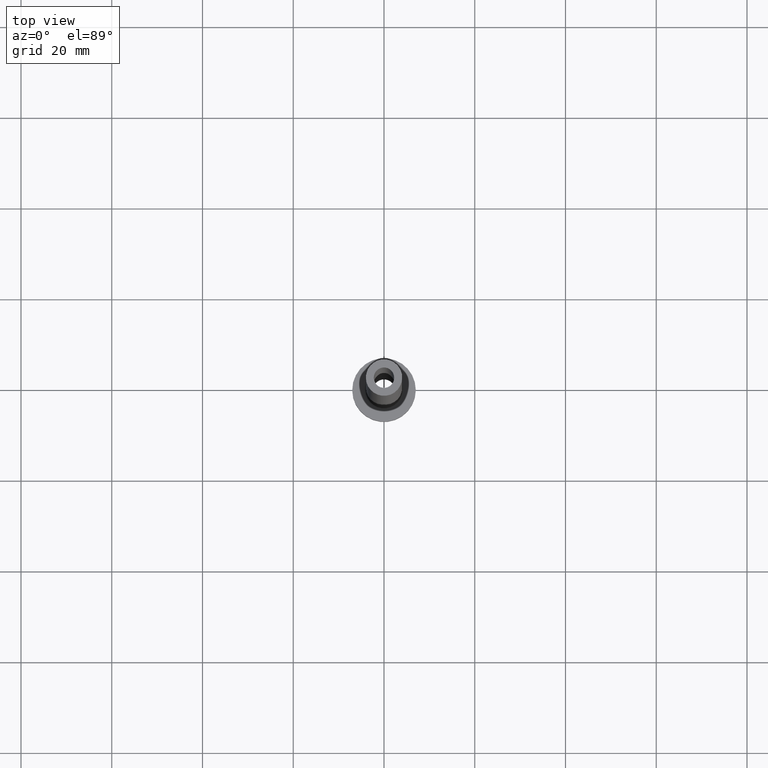
[diagram: clean part render]
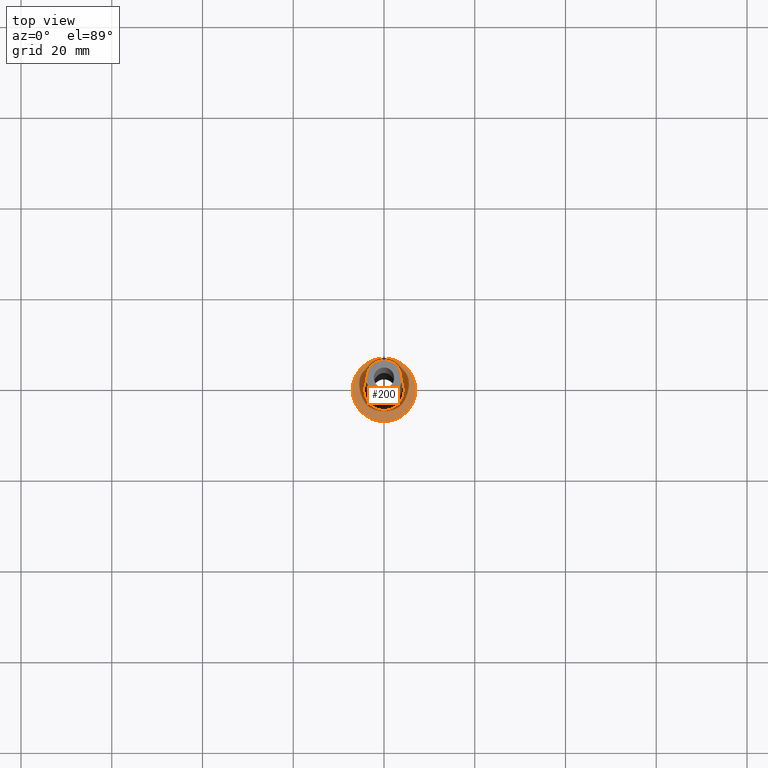
[diagram: same view with one face highlighted and labeled with its STEP entity id]
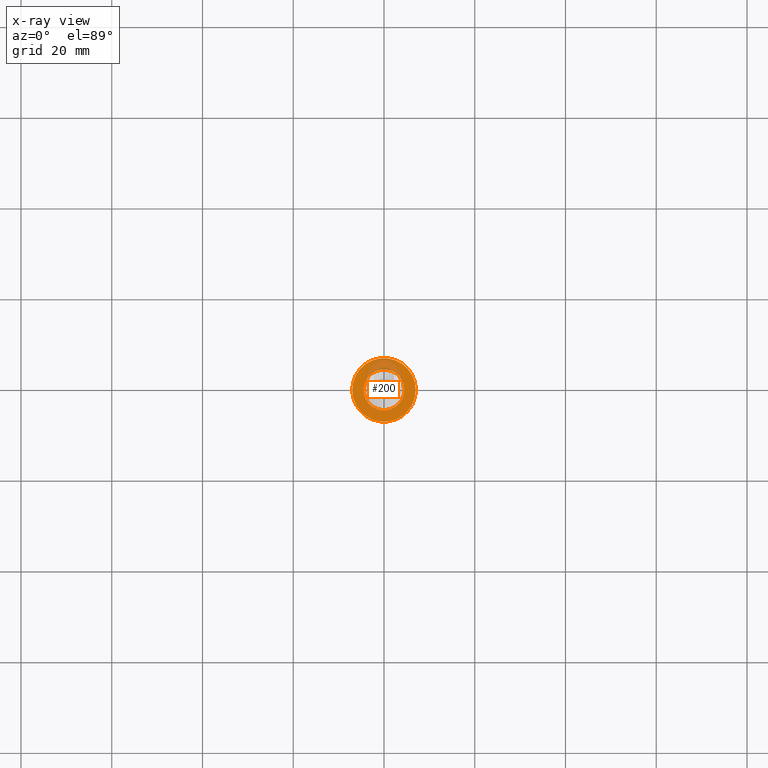
[diagram: x-ray of the same camera — body ghosted, the highlighted face saturated]
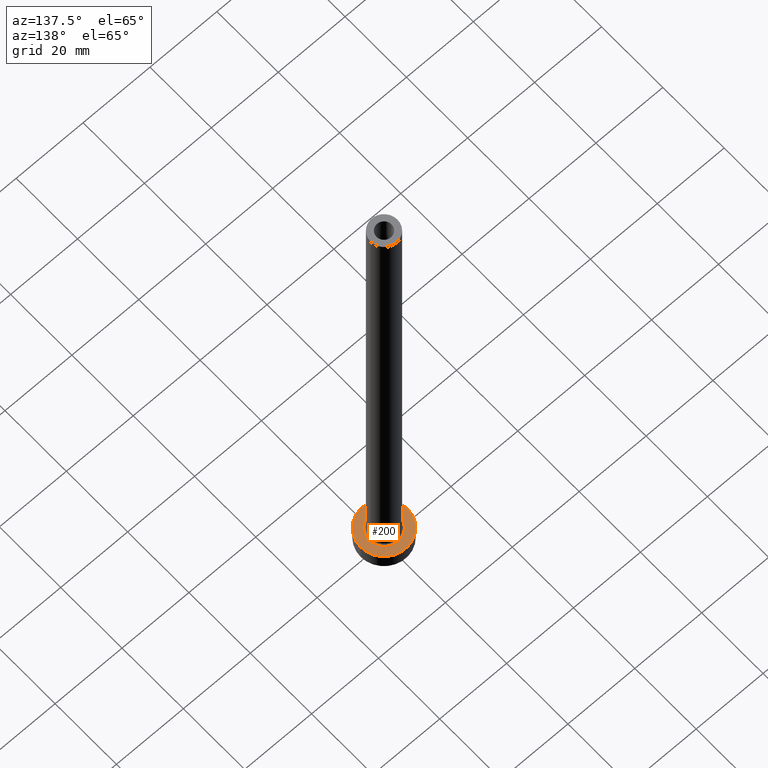
[diagram: same view with one face highlighted and labeled with its STEP entity id]
A machine part, top view. The second image highlights one B-rep face of the part: STEP entity #200.
The next image is the same camera in x-ray: the body ghosted, the highlighted face saturated — about 18% of this face is hidden behind the body in this view.
A second angle (auxiliary view) of the same face is appended — the face is thin or edge-on in the first view.
In plain terms, the highlighted planar face has unit normal (0, 0, 1).
Its self-contained STEP definition (entity closure, byte-faithful):
#3 = CARTESIAN_POINT ( 'NONE',  ( -4.500000000000000888, 5.510910596163088569E-16, 5.000000000000002665 ) ) ;
#4 = DIRECTION ( 'NONE',  ( -0.000000000000000000, -0.000000000000000000, -1.000000000000000000 ) ) ;
#20 = VERTEX_POINT ( 'NONE', #3 ) ;
#21 = PLANE ( 'NONE',  #236 ) ;
#22 = AXIS2_PLACEMENT_3D ( 'NONE', #68, #431, #184 ) ;
#24 = DIRECTION ( 'NONE',  ( 1.000000000000000000, 0.000000000000000000, -0.000000000000000000 ) ) ;
#29 = ORIENTED_EDGE ( 'NONE', *, *, #432, .T. ) ;
#33 = DIRECTION ( 'NONE',  ( 0.000000000000000000, 0.000000000000000000, 1.000000000000000000 ) ) ;
#42 = AXIS2_PLACEMENT_3D ( 'NONE', #334, #4, #149 ) ;
#43 = ORIENTED_EDGE ( 'NONE', *, *, #311, .T. ) ;
#49 = AXIS2_PLACEMENT_3D ( 'NONE', #222, #33, #75 ) ;
#68 = CARTESIAN_POINT ( 'NONE',  ( 0.000000000000000000, 0.000000000000000000, 5.000000000000000000 ) ) ;
#75 = DIRECTION ( 'NONE',  ( 1.000000000000000000, 0.000000000000000000, 0.000000000000000000 ) ) ;
#114 = VERTEX_POINT ( 'NONE', #195 ) ;
#133 = EDGE_LOOP ( 'NONE', ( #43, #29 ) ) ;
#138 = CARTESIAN_POINT ( 'NONE',  ( 7.000000000000000000, 8.572527594031473190E-16, 5.000000000000000000 ) ) ;
#149 = DIRECTION ( 'NONE',  ( 1.000000000000000000, 0.000000000000000000, 0.000000000000000000 ) ) ;
#154 = CIRCLE ( 'NONE', #207, 7.000000000000000000 ) ;
#156 = CIRCLE ( 'NONE', #22, 4.500000000000000888 ) ;
#163 = FACE_BOUND ( 'NONE', #383, .T. ) ;
#184 = DIRECTION ( 'NONE',  ( 1.000000000000000000, 0.000000000000000000, 0.000000000000000000 ) ) ;
#195 = CARTESIAN_POINT ( 'NONE',  ( 4.500000000000000888, 0.000000000000000000, 5.000000000000002665 ) ) ;
#197 = CIRCLE ( 'NONE', #49, 7.000000000000000000 ) ;
#198 = FACE_OUTER_BOUND ( 'NONE', #133, .T. ) ;
#200 = ADVANCED_FACE ( 'NONE', ( #163, #198 ), #21, .T. ) ;
#204 = EDGE_CURVE ( 'NONE', #20, #114, #156, .T. ) ;
#207 = AXIS2_PLACEMENT_3D ( 'NONE', #214, #416, #366 ) ;
#213 = EDGE_CURVE ( 'NONE', #114, #20, #225, .T. ) ;
#214 = CARTESIAN_POINT ( 'NONE',  ( 0.000000000000000000, 0.000000000000000000, 5.000000000000000000 ) ) ;
#222 = CARTESIAN_POINT ( 'NONE',  ( 0.000000000000000000, 0.000000000000000000, 5.000000000000000000 ) ) ;
#225 = CIRCLE ( 'NONE', #42, 4.500000000000000888 ) ;
#236 = AXIS2_PLACEMENT_3D ( 'NONE', #315, #353, #24 ) ;
#253 = ORIENTED_EDGE ( 'NONE', *, *, #213, .T. ) ;
#295 = CARTESIAN_POINT ( 'NONE',  ( -7.000000000000000000, 0.000000000000000000, 5.000000000000000000 ) ) ;
#311 = EDGE_CURVE ( 'NONE', #387, #354, #197, .T. ) ;
#315 = CARTESIAN_POINT ( 'NONE',  ( 0.000000000000000000, 0.000000000000000000, 5.000000000000000000 ) ) ;
#334 = CARTESIAN_POINT ( 'NONE',  ( 0.000000000000000000, 0.000000000000000000, 5.000000000000000000 ) ) ;
#353 = DIRECTION ( 'NONE',  ( 0.000000000000000000, 0.000000000000000000, 1.000000000000000000 ) ) ;
#354 = VERTEX_POINT ( 'NONE', #138 ) ;
#366 = DIRECTION ( 'NONE',  ( 1.000000000000000000, 0.000000000000000000, 0.000000000000000000 ) ) ;
#383 = EDGE_LOOP ( 'NONE', ( #253, #385 ) ) ;
#385 = ORIENTED_EDGE ( 'NONE', *, *, #204, .T. ) ;
#387 = VERTEX_POINT ( 'NONE', #295 ) ;
#416 = DIRECTION ( 'NONE',  ( 0.000000000000000000, 0.000000000000000000, 1.000000000000000000 ) ) ;
#431 = DIRECTION ( 'NONE',  ( -0.000000000000000000, -0.000000000000000000, -1.000000000000000000 ) ) ;
#432 = EDGE_CURVE ( 'NONE', #354, #387, #154, .T. ) ;